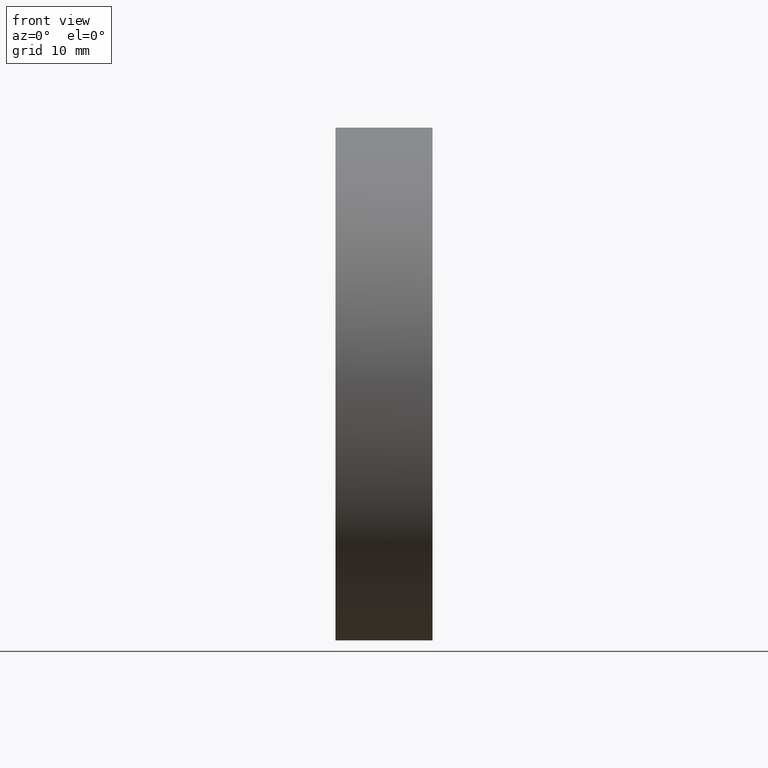
[diagram: clean part render]
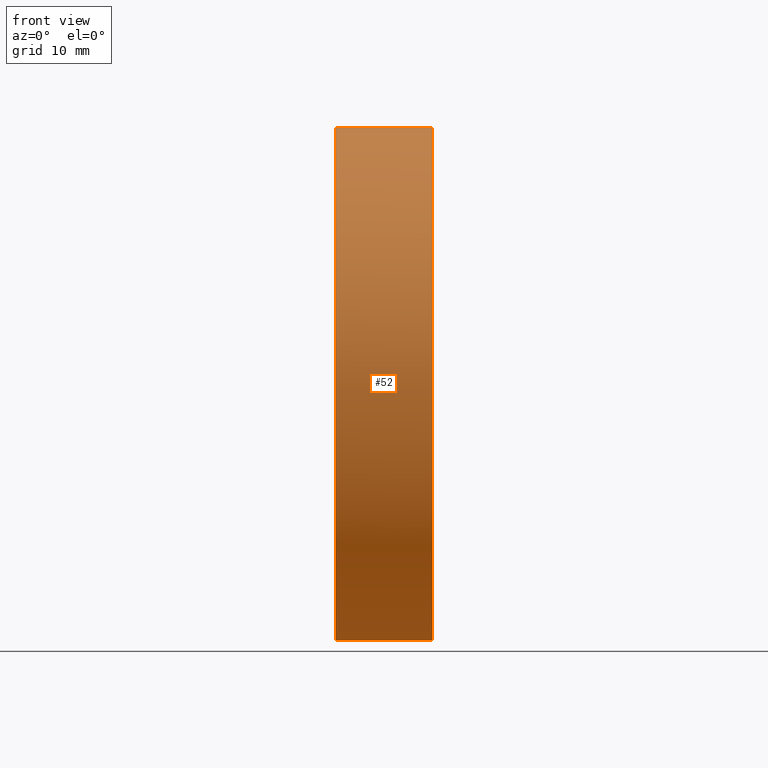
[diagram: same view with one face highlighted and labeled with its STEP entity id]
A machine part, front view. The second image highlights one B-rep face of the part: STEP entity #52.
In plain terms, the highlighted cylindrical surface (partial cylindrical patch) has radius 25 mm, axis along (-1, -0, -0).
Its self-contained STEP definition (entity closure, byte-faithful):
#2 = EDGE_CURVE ( 'NONE', #184, #145, #147, .T. ) ;
#5 = LINE ( 'NONE', #47, #75 ) ;
#15 = CARTESIAN_POINT ( 'NONE',  ( 105.6218371238301200, 65.15563045701519200, 0.0000000000000000000 ) ) ;
#17 = DIRECTION ( 'NONE',  ( 0.0000000000000000000, 0.0000000000000000000, 1.000000000000000000 ) ) ;
#23 = ORIENTED_EDGE ( 'NONE', *, *, #2, .F. ) ;
#26 = EDGE_CURVE ( 'NONE', #145, #160, #84, .T. ) ;
#37 = CARTESIAN_POINT ( 'NONE',  ( 113.7394371346435000, 65.15563045701519200, 0.0000000000000000000 ) ) ;
#40 = AXIS2_PLACEMENT_3D ( 'NONE', #112, #95, #126 ) ;
#43 = EDGE_CURVE ( 'NONE', #161, #160, #5, .T. ) ;
#47 = CARTESIAN_POINT ( 'NONE',  ( 105.6218371238301200, 65.15563045701519200, 24.99999999999999300 ) ) ;
#51 = EDGE_CURVE ( 'NONE', #184, #131, #114, .T. ) ;
#52 = ADVANCED_FACE ( 'NONE', ( #89 ), #142, .T. ) ;
#54 = CARTESIAN_POINT ( 'NONE',  ( 123.1943776569798400, 65.15563045701519200, 0.0000000000000000000 ) ) ;
#59 = ORIENTED_EDGE ( 'NONE', *, *, #26, .F. ) ;
#60 = CARTESIAN_POINT ( 'NONE',  ( 123.1943776569798400, 65.15563045701519200, 24.99999999999999300 ) ) ;
#61 = AXIS2_PLACEMENT_3D ( 'NONE', #37, #146, #115 ) ;
#62 = CARTESIAN_POINT ( 'NONE',  ( 105.6218371238301200, 65.15563045701519200, -24.99999999999999300 ) ) ;
#70 = DIRECTION ( 'NONE',  ( -1.000000000000000000, -0.0000000000000000000, -0.0000000000000000000 ) ) ;
#73 = AXIS2_PLACEMENT_3D ( 'NONE', #54, #70, #17 ) ;
#75 = VECTOR ( 'NONE', #98, 1000.000000000000000 ) ;
#84 = CIRCLE ( 'NONE', #61, 24.99999999999999300 ) ;
#89 = FACE_OUTER_BOUND ( 'NONE', #125, .T. ) ;
#95 = DIRECTION ( 'NONE',  ( -1.000000000000000000, -0.0000000000000000000, -0.0000000000000000000 ) ) ;
#98 = DIRECTION ( 'NONE',  ( -1.000000000000000000, -0.0000000000000000000, -0.0000000000000000000 ) ) ;
#108 = CARTESIAN_POINT ( 'NONE',  ( 123.1943776569798400, 65.15563045701519200, -24.99999999999999300 ) ) ;
#110 = DIRECTION ( 'NONE',  ( 0.0000000000000000000, 0.0000000000000000000, 1.000000000000000000 ) ) ;
#112 = CARTESIAN_POINT ( 'NONE',  ( 123.1943776569798400, 65.15563045701519200, 0.0000000000000000000 ) ) ;
#114 = CIRCLE ( 'NONE', #73, 24.99999999999999300 ) ;
#115 = DIRECTION ( 'NONE',  ( 0.0000000000000000000, 0.0000000000000000000, 1.000000000000000000 ) ) ;
#117 = AXIS2_PLACEMENT_3D ( 'NONE', #15, #152, #110 ) ;
#119 = VECTOR ( 'NONE', #144, 1000.000000000000000 ) ;
#123 = EDGE_CURVE ( 'NONE', #131, #161, #151, .T. ) ;
#125 = EDGE_LOOP ( 'NONE', ( #23, #129, #156, #171, #59 ) ) ;
#126 = DIRECTION ( 'NONE',  ( 0.0000000000000000000, 0.0000000000000000000, 1.000000000000000000 ) ) ;
#127 = CARTESIAN_POINT ( 'NONE',  ( 113.7394371346435000, 65.15563045701519200, -24.99999999999999300 ) ) ;
#129 = ORIENTED_EDGE ( 'NONE', *, *, #51, .T. ) ;
#131 = VERTEX_POINT ( 'NONE', #154 ) ;
#142 = CYLINDRICAL_SURFACE ( 'NONE', #117, 24.99999999999999300 ) ;
#144 = DIRECTION ( 'NONE',  ( -1.000000000000000000, -0.0000000000000000000, -0.0000000000000000000 ) ) ;
#145 = VERTEX_POINT ( 'NONE', #127 ) ;
#146 = DIRECTION ( 'NONE',  ( -1.000000000000000000, -0.0000000000000000000, -0.0000000000000000000 ) ) ;
#147 = LINE ( 'NONE', #62, #119 ) ;
#151 = CIRCLE ( 'NONE', #40, 24.99999999999999300 ) ;
#152 = DIRECTION ( 'NONE',  ( -1.000000000000000000, -0.0000000000000000000, -0.0000000000000000000 ) ) ;
#154 = CARTESIAN_POINT ( 'NONE',  ( 123.1943776569798400, 40.15563045701518500, 0.0000000000000000000 ) ) ;
#156 = ORIENTED_EDGE ( 'NONE', *, *, #123, .T. ) ;
#160 = VERTEX_POINT ( 'NONE', #167 ) ;
#161 = VERTEX_POINT ( 'NONE', #60 ) ;
#167 = CARTESIAN_POINT ( 'NONE',  ( 113.7394371346435000, 65.15563045701519200, 24.99999999999999300 ) ) ;
#171 = ORIENTED_EDGE ( 'NONE', *, *, #43, .T. ) ;
#184 = VERTEX_POINT ( 'NONE', #108 ) ;